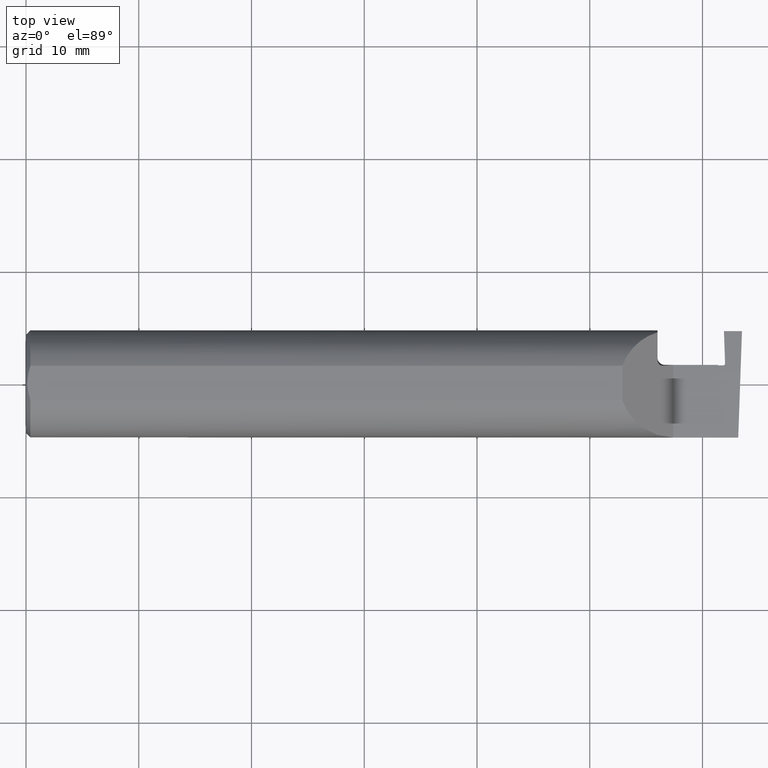
[diagram: clean part render]
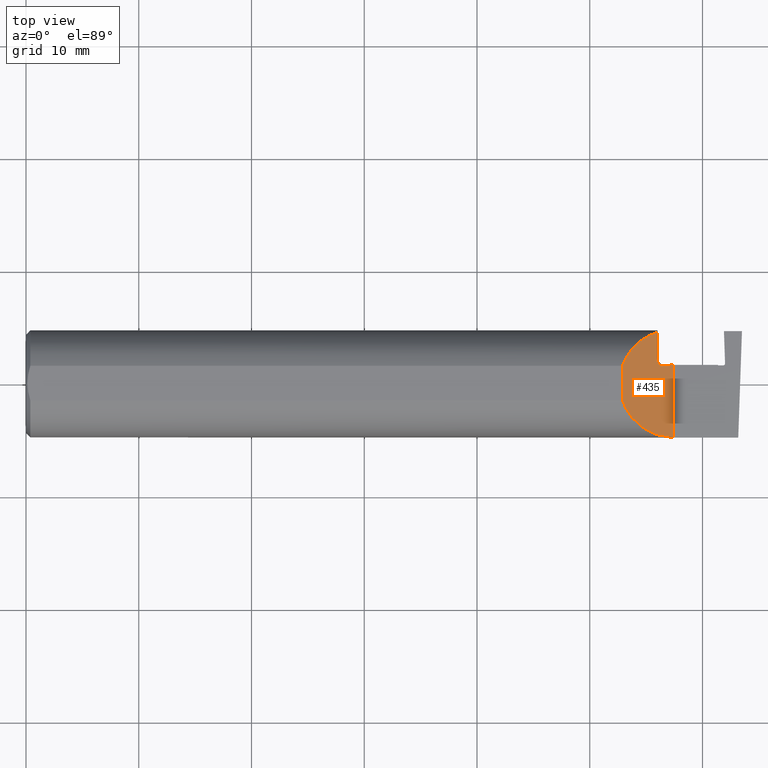
[diagram: same view with one face highlighted and labeled with its STEP entity id]
A machine part, top view. The second image highlights one B-rep face of the part: STEP entity #435.
In plain terms, the highlighted planar face has unit normal (-0.7071, 0, -0.7071).
Its self-contained STEP definition (entity closure, byte-faithful):
#15 = CARTESIAN_POINT ( 'NONE',  ( 2.249915058064202000, 0.06665000000000002867, 0.01008494193579769112 ) ) ;
#31 = FACE_OUTER_BOUND ( 'NONE', #328, .T. ) ;
#36 = EDGE_CURVE ( 'NONE', #796, #512, #746, .T. ) ;
#64 = LINE ( 'NONE', #581, #645 ) ;
#81 = VERTEX_POINT ( 'NONE', #689 ) ;
#91 = VERTEX_POINT ( 'NONE', #189 ) ;
#110 = CARTESIAN_POINT ( 'NONE',  ( 2.260000000000000231, -0.1873499999999999888, 2.939152317953647352E-17 ) ) ;
#113 = CARTESIAN_POINT ( 'NONE',  ( 2.204999999999991189, 0.07897270715588852741, 0.05500000000000909717 ) ) ;
#173 = CARTESIAN_POINT ( 'NONE',  ( 2.209174443422547540, 0.06905248475529518482, 0.05082555657745251726 ) ) ;
#185 = CARTESIAN_POINT ( 'NONE',  ( 2.211520456256380385, 0.06688403108856623425, 0.04847954374361986701 ) ) ;
#189 = CARTESIAN_POINT ( 'NONE',  ( 2.260000000000000231, -0.1873499999999999888, 2.939152317953647352E-17 ) ) ;
#211 = DIRECTION ( 'NONE',  ( -0.000000000000000000, 1.000000000000000000, -0.000000000000000000 ) ) ;
#270 = CARTESIAN_POINT ( 'NONE',  ( 2.219230369976860295, 0.06337349534376400528, 0.04076963002314065027 ) ) ;
#271 = DIRECTION ( 'NONE',  ( -0.7071067811865454633, 0.000000000000000000, 0.7071067811865496822 ) ) ;
#323 = ORIENTED_EDGE ( 'NONE', *, *, #712, .T. ) ;
#328 = EDGE_LOOP ( 'NONE', ( #724, #677, #323, #640, #870, #734, #866 ) ) ;
#331 = CARTESIAN_POINT ( 'NONE',  ( 2.205000000000000071, 0.08278247725836135329, 0.05500000000000044437 ) ) ;
#340 = CARTESIAN_POINT ( 'NONE',  ( 2.229999999999999982, 0.06361938456699062217, 0.03000000000000040135 ) ) ;
#345 = CARTESIAN_POINT ( 'NONE',  ( 2.227316790845961680, 0.06307167679193398380, 0.03268320915403863380 ) ) ;
#349 = VERTEX_POINT ( 'NONE', #660 ) ;
#368 = CARTESIAN_POINT ( 'NONE',  ( 2.205000000000000071, 0.08278247725836135329, 0.05500000000000044437 ) ) ;
#371 = CARTESIAN_POINT ( 'NONE',  ( 2.229999999999999982, 0.06361938456699062217, 0.03000000000000040135 ) ) ;
#386 = EDGE_CURVE ( 'NONE', #91, #697, #837, .T. ) ;
#392 =( BOUNDED_CURVE ( )  B_SPLINE_CURVE ( 3, ( #397, #627, #401, #554 ),
 .UNSPECIFIED., .F., .T. ) 
 B_SPLINE_CURVE_WITH_KNOTS ( ( 4, 4 ),
 ( 0.3282003792178449508, 1.272838961666674873 ),
 .UNSPECIFIED. ) 
 CURVE ( )  GEOMETRIC_REPRESENTATION_ITEM ( )  RATIONAL_B_SPLINE_CURVE ( ( 1.000000000000000000, 0.9270103440186696631, 0.9270103440186696631, 1.000000000000000000 ) ) 
 REPRESENTATION_ITEM ( '' )  );
#397 = CARTESIAN_POINT ( 'NONE',  ( 2.082650000000001445, 0.06039039658753697637, 0.1773499999999999799 ) ) ;
#401 = CARTESIAN_POINT ( 'NONE',  ( 2.146403178835508463, 0.1610999512718552795, 0.1135968211644918235 ) ) ;
#403 = CARTESIAN_POINT ( 'NONE',  ( 2.082650000000001445, -0.06039039658753699025, 0.1773499999999999799 ) ) ;
#407 = CARTESIAN_POINT ( 'NONE',  ( 2.109420298020488804, -0.1390074056189584684, 0.1505797019795120650 ) ) ;
#419 = CARTESIAN_POINT ( 'NONE',  ( 2.205000000000000071, -0.2000000000000000111, 0.05500000000000044437 ) ) ;
#422 = VECTOR ( 'NONE', #846, 39.37007874015748143 ) ;
#435 = ADVANCED_FACE ( 'NONE', ( #31 ), #904, .F. ) ;
#480 = CARTESIAN_POINT ( 'NONE',  ( 2.176950117609040891, -0.1873500000000001275, 0.08304988239095997815 ) ) ;
#499 = LINE ( 'NONE', #419, #422 ) ;
#512 = VERTEX_POINT ( 'NONE', #709 ) ;
#527 = EDGE_CURVE ( 'NONE', #91, #512, #64, .T. ) ;
#528 = CARTESIAN_POINT ( 'NONE',  ( 2.260000000000000231, 0.06665000000000002867, 2.939152317953647352E-17 ) ) ;
#554 = CARTESIAN_POINT ( 'NONE',  ( 2.205000000000000071, 0.1790950097015547027, 0.05500000000000044437 ) ) ;
#559 = CARTESIAN_POINT ( 'NONE',  ( 2.260000000000000231, -0.2000000000000000111, 2.939152317953647352E-17 ) ) ;
#568 = CARTESIAN_POINT ( 'NONE',  ( 2.229999999999999982, 0.06361938456699062217, 0.03000000000000040135 ) ) ;
#581 = CARTESIAN_POINT ( 'NONE',  ( 2.260000000000000231, -0.2000000000000000111, 2.939152317953647352E-17 ) ) ;
#594 = VECTOR ( 'NONE', #927, 39.37007874015748143 ) ;
#602 = LINE ( 'NONE', #728, #594 ) ;
#621 = DIRECTION ( 'NONE',  ( -0.7071067811865496822, 0.000000000000000000, -0.7071067811865454633 ) ) ;
#627 = CARTESIAN_POINT ( 'NONE',  ( 2.102408703912463483, 0.1184162804513036737, 0.1575912960875374691 ) ) ;
#640 = ORIENTED_EDGE ( 'NONE', *, *, #386, .F. ) ;
#644 = VERTEX_POINT ( 'NONE', #368 ) ;
#645 = VECTOR ( 'NONE', #211, 39.37007874015748143 ) ;
#658 = CARTESIAN_POINT ( 'NONE',  ( 2.082650000000001445, -0.06039039658753699025, 0.1773499999999999799 ) ) ;
#660 = CARTESIAN_POINT ( 'NONE',  ( 2.205000000000000071, 0.1790950097015547027, 0.05500000000000044437 ) ) ;
#677 = ORIENTED_EDGE ( 'NONE', *, *, #755, .F. ) ;
#689 = CARTESIAN_POINT ( 'NONE',  ( 2.082650000000001445, 0.06039039658753697637, 0.1773499999999999799 ) ) ;
#691 = B_SPLINE_CURVE_WITH_KNOTS ( 'NONE', 3,
 ( #331, #113, #698, #173, #185, #760, #270, #756, #345, #568 ),
 .UNSPECIFIED., .F., .F.,
 ( 4, 2, 2, 2, 4 ),
 ( 0.0002310241221917414282, 0.0005215959404343398003, 0.0008121677586769381453, 0.001102739576919536382, 0.001393311395162134727 ),
 .UNSPECIFIED. ) ;
#697 = VERTEX_POINT ( 'NONE', #658 ) ;
#698 = CARTESIAN_POINT ( 'NONE',  ( 2.205844377573318749, 0.07516925271166334521, 0.05415562242668194026 ) ) ;
#709 = CARTESIAN_POINT ( 'NONE',  ( 2.260000000000000231, 0.06665000000000002867, 2.939152317953647352E-17 ) ) ;
#712 = EDGE_CURVE ( 'NONE', #81, #697, #602, .T. ) ;
#719 = AXIS2_PLACEMENT_3D ( 'NONE', #559, #621, #271 ) ;
#724 = ORIENTED_EDGE ( 'NONE', *, *, #907, .F. ) ;
#728 = CARTESIAN_POINT ( 'NONE',  ( 2.082650000000001445, -0.1873500000000000165, 0.1773499999999999799 ) ) ;
#734 = ORIENTED_EDGE ( 'NONE', *, *, #36, .F. ) ;
#746 =( BOUNDED_CURVE ( )  B_SPLINE_CURVE ( 3, ( #371, #798, #15, #528 ),
 .UNSPECIFIED., .F., .F. ) 
 B_SPLINE_CURVE_WITH_KNOTS ( ( 4, 4 ),
 ( 1.369438406004563014, 1.570796326794896558 ),
 .UNSPECIFIED. ) 
 CURVE ( )  GEOMETRIC_REPRESENTATION_ITEM ( )  RATIONAL_B_SPLINE_CURVE ( ( 1.000000000000000000, 0.9966241020034158904, 0.9966241020034158904, 1.000000000000000000 ) ) 
 REPRESENTATION_ITEM ( '' )  );
#755 = EDGE_CURVE ( 'NONE', #81, #349, #392, .T. ) ;
#756 = CARTESIAN_POINT ( 'NONE',  ( 2.224592470555872836, 0.06287337828823326424, 0.03540752944412774855 ) ) ;
#760 = CARTESIAN_POINT ( 'NONE',  ( 2.216533783189306828, 0.06407474134121425580, 0.04346621681069413878 ) ) ;
#779 = EDGE_CURVE ( 'NONE', #644, #796, #691, .T. ) ;
#796 = VERTEX_POINT ( 'NONE', #340 ) ;
#798 = CARTESIAN_POINT ( 'NONE',  ( 2.239881184731320030, 0.06563637295415017392, 0.02011881526868028805 ) ) ;
#837 =( BOUNDED_CURVE ( )  B_SPLINE_CURVE ( 3, ( #110, #480, #407, #403 ),
 .UNSPECIFIED., .F., .F. ) 
 B_SPLINE_CURVE_WITH_KNOTS ( ( 4, 4 ),
 ( 4.712388980384688786, 5.954984927961740837 ),
 .UNSPECIFIED. ) 
 CURVE ( )  GEOMETRIC_REPRESENTATION_ITEM ( )  RATIONAL_B_SPLINE_CURVE ( ( 1.000000000000000000, 0.8754157352537689230, 0.8754157352537689230, 1.000000000000000000 ) ) 
 REPRESENTATION_ITEM ( '' )  );
#846 = DIRECTION ( 'NONE',  ( 0.000000000000000000, -1.000000000000000000, 0.000000000000000000 ) ) ;
#866 = ORIENTED_EDGE ( 'NONE', *, *, #779, .F. ) ;
#870 = ORIENTED_EDGE ( 'NONE', *, *, #527, .T. ) ;
#904 = PLANE ( 'NONE',  #719 ) ;
#907 = EDGE_CURVE ( 'NONE', #349, #644, #499, .T. ) ;
#927 = DIRECTION ( 'NONE',  ( 0.000000000000000000, -1.000000000000000000, 0.000000000000000000 ) ) ;